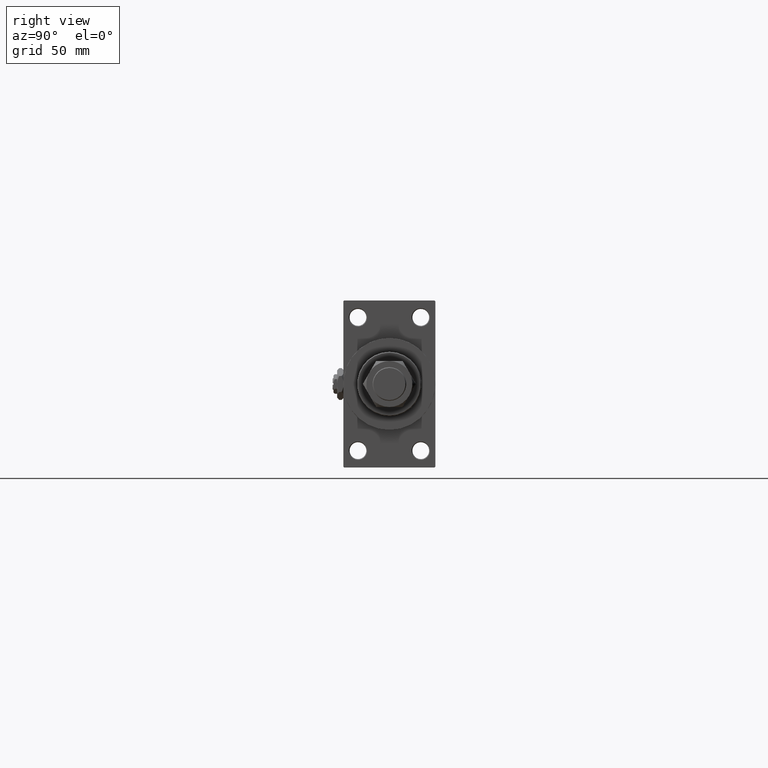
[diagram: clean part render]
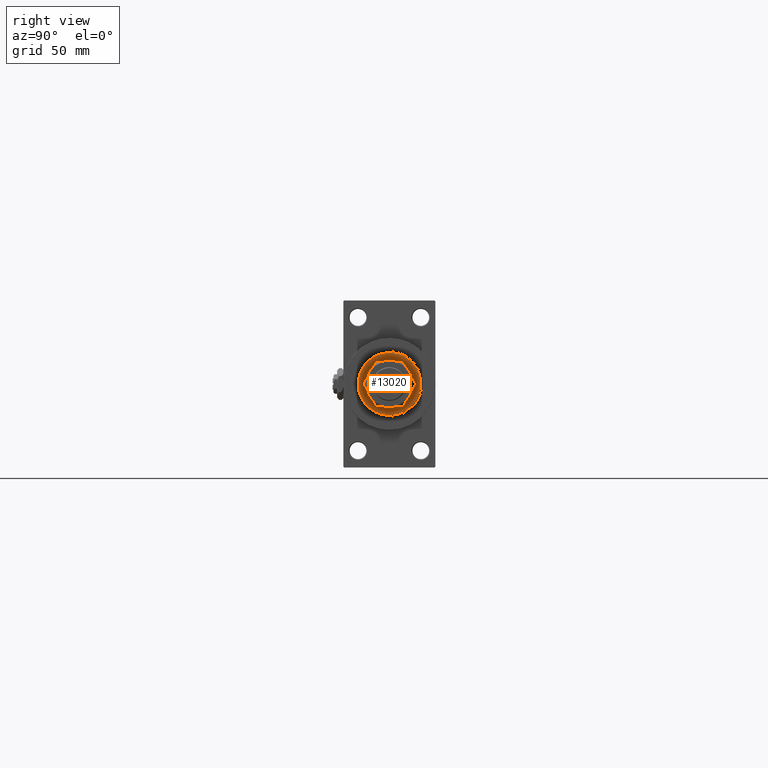
[diagram: same view with one face highlighted and labeled with its STEP entity id]
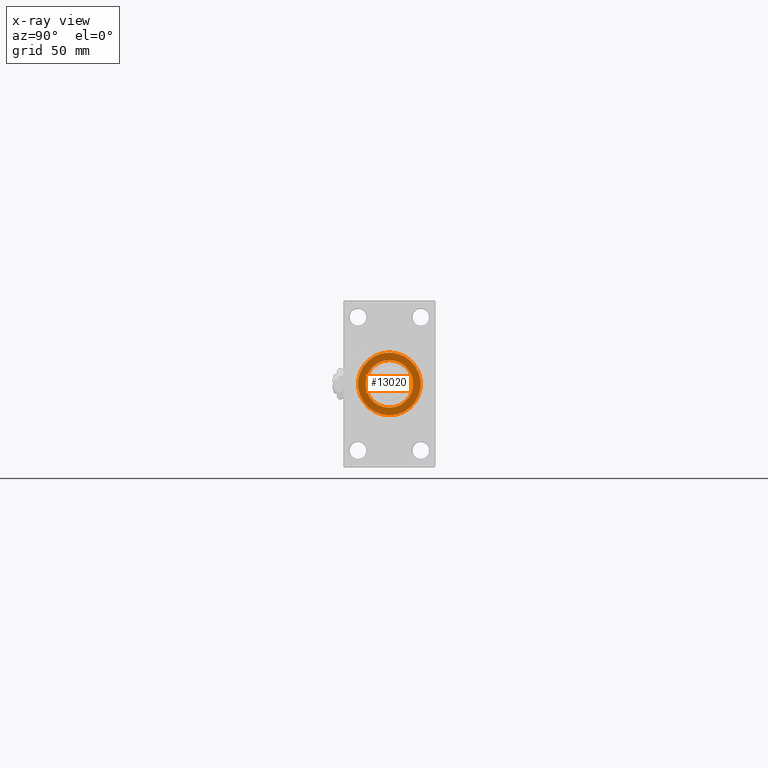
[diagram: x-ray of the same camera — body ghosted, the highlighted face saturated]
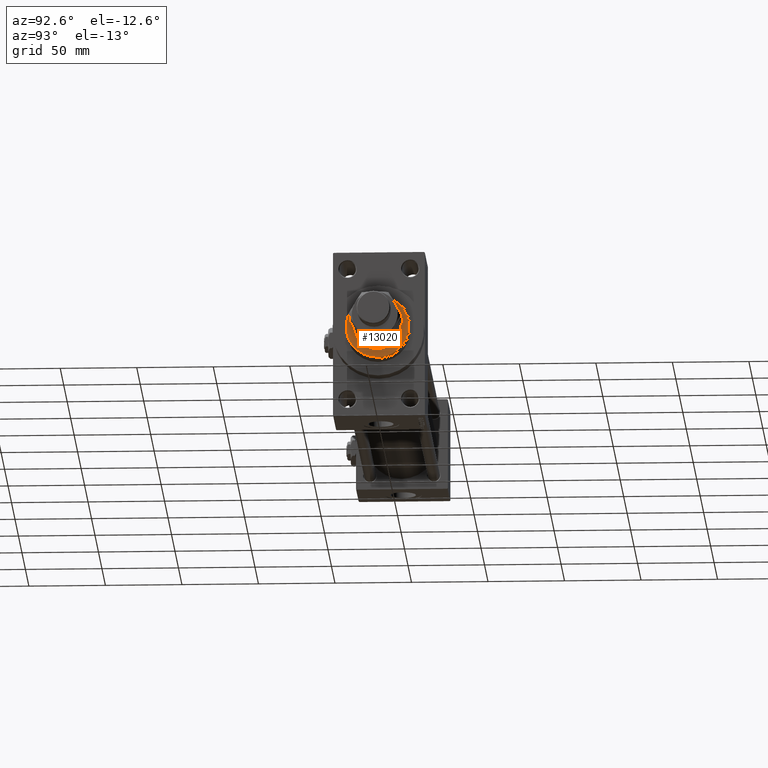
[diagram: same view with one face highlighted and labeled with its STEP entity id]
A machine part, right view. The second image highlights one B-rep face of the part: STEP entity #13020.
The next image is the same camera in x-ray: the body ghosted, the highlighted face saturated — about 0% of this face is hidden behind the body in this view.
A second angle (auxiliary view) of the same face is appended — the face is thin or edge-on in the first view.
In plain terms, the highlighted planar face has unit normal (1, -0, -0).
Its self-contained STEP definition (entity closure, byte-faithful):
#1272 = VERTEX_POINT ( 'NONE', #28575 ) ;
#1334 = AXIS2_PLACEMENT_3D ( 'NONE', #24653, #12547, #37745 ) ;
#1376 = CIRCLE ( 'NONE', #39334, 15.50000000000000000 ) ;
#1512 = ORIENTED_EDGE ( 'NONE', *, *, #12579, .F. ) ;
#3686 = FACE_BOUND ( 'NONE', #7404, .T. ) ;
#3789 = EDGE_CURVE ( 'NONE', #44753, #30447, #28354, .T. ) ;
#4151 = CARTESIAN_POINT ( 'NONE',  ( 20.50000000000000355, 2.541142108230758269E-15, 55.26000000000000512 ) ) ;
#7404 = EDGE_LOOP ( 'NONE', ( #50005, #1512 ) ) ;
#7530 = CARTESIAN_POINT ( 'NONE',  ( 0.000000000000000000, 0.000000000000000000, 55.26000000000000512 ) ) ;
#8610 = DIRECTION ( 'NONE',  ( 1.000000000000000000, 0.000000000000000000, 0.000000000000000000 ) ) ;
#9123 = CARTESIAN_POINT ( 'NONE',  ( 0.000000000000000000, 0.000000000000000000, 55.26000000000000512 ) ) ;
#9470 = CIRCLE ( 'NONE', #39117, 20.50000000000000355 ) ;
#9568 = EDGE_CURVE ( 'NONE', #30447, #44753, #9470, .T. ) ;
#12547 = DIRECTION ( 'NONE',  ( 0.000000000000000000, 0.000000000000000000, 1.000000000000000000 ) ) ;
#12579 = EDGE_CURVE ( 'NONE', #38123, #1272, #33496, .T. ) ;
#12972 = DIRECTION ( 'NONE',  ( 0.000000000000000000, 0.000000000000000000, 1.000000000000000000 ) ) ;
#13020 = ADVANCED_FACE ( 'NONE', ( #3686, #15574 ), #50341, .T. ) ;
#14056 = EDGE_CURVE ( 'NONE', #1272, #38123, #1376, .T. ) ;
#15026 = DIRECTION ( 'NONE',  ( 1.000000000000000000, 0.000000000000000000, 0.000000000000000000 ) ) ;
#15574 = FACE_OUTER_BOUND ( 'NONE', #31143, .T. ) ;
#20220 = DIRECTION ( 'NONE',  ( 0.000000000000000000, 0.000000000000000000, 1.000000000000000000 ) ) ;
#20407 = ORIENTED_EDGE ( 'NONE', *, *, #9568, .T. ) ;
#20704 = DIRECTION ( 'NONE',  ( 1.000000000000000000, 0.000000000000000000, 0.000000000000000000 ) ) ;
#23448 = CARTESIAN_POINT ( 'NONE',  ( -20.50000000000000355, 0.000000000000000000, 55.26000000000000512 ) ) ;
#23540 = DIRECTION ( 'NONE',  ( 1.000000000000000000, 0.000000000000000000, -0.000000000000000000 ) ) ;
#24653 = CARTESIAN_POINT ( 'NONE',  ( 0.000000000000000000, 0.000000000000000000, 55.26000000000000512 ) ) ;
#25235 = AXIS2_PLACEMENT_3D ( 'NONE', #43132, #30781, #23540 ) ;
#27289 = CARTESIAN_POINT ( 'NONE',  ( -15.50000000000000000, 1.898202538678397557E-15, 55.26000000000000512 ) ) ;
#28354 = CIRCLE ( 'NONE', #38238, 20.50000000000000355 ) ;
#28575 = CARTESIAN_POINT ( 'NONE',  ( 15.50000000000000000, 0.000000000000000000, 55.26000000000000512 ) ) ;
#30447 = VERTEX_POINT ( 'NONE', #4151 ) ;
#30781 = DIRECTION ( 'NONE',  ( 0.000000000000000000, 0.000000000000000000, 1.000000000000000000 ) ) ;
#31143 = EDGE_LOOP ( 'NONE', ( #39989, #20407 ) ) ;
#33496 = CIRCLE ( 'NONE', #1334, 15.50000000000000000 ) ;
#37745 = DIRECTION ( 'NONE',  ( 1.000000000000000000, 0.000000000000000000, 0.000000000000000000 ) ) ;
#38123 = VERTEX_POINT ( 'NONE', #27289 ) ;
#38238 = AXIS2_PLACEMENT_3D ( 'NONE', #7530, #46192, #15026 ) ;
#39117 = AXIS2_PLACEMENT_3D ( 'NONE', #9123, #20220, #8610 ) ;
#39334 = AXIS2_PLACEMENT_3D ( 'NONE', #44912, #12972, #20704 ) ;
#39989 = ORIENTED_EDGE ( 'NONE', *, *, #3789, .T. ) ;
#43132 = CARTESIAN_POINT ( 'NONE',  ( 0.000000000000000000, 0.000000000000000000, 55.26000000000000512 ) ) ;
#44753 = VERTEX_POINT ( 'NONE', #23448 ) ;
#44912 = CARTESIAN_POINT ( 'NONE',  ( 0.000000000000000000, 0.000000000000000000, 55.26000000000000512 ) ) ;
#46192 = DIRECTION ( 'NONE',  ( 0.000000000000000000, 0.000000000000000000, 1.000000000000000000 ) ) ;
#50005 = ORIENTED_EDGE ( 'NONE', *, *, #14056, .F. ) ;
#50341 = PLANE ( 'NONE',  #25235 ) ;